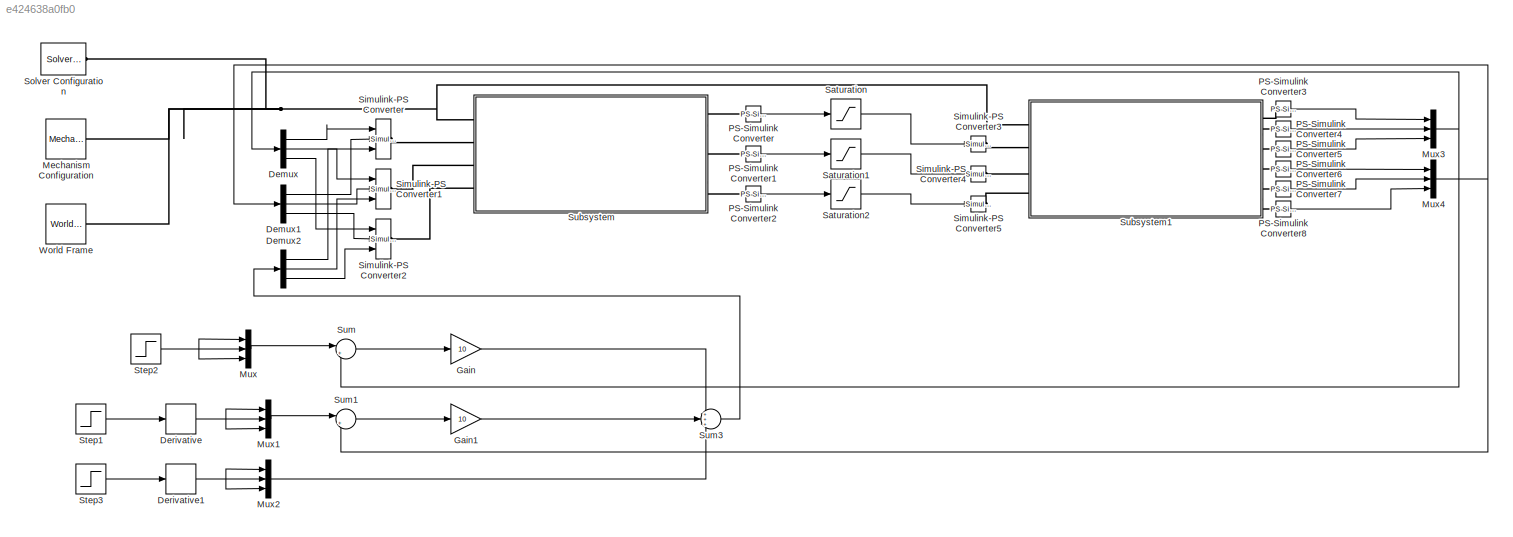
MODEL slx_e424638a0fb0
KIND model
CONFIG AbsTol = auto
CONFIG EnableMultiTasking = off
CONFIG FixedStep = 0.001
CONFIG MaxStep = auto
CONFIG MinStep = auto
CONFIG RelTol = 1e-3
CONFIG SampleTimeConstraint = Unconstrained
CONFIG SolverName = FixedStepAuto
CONFIG StartTime = 0.0
CONFIG StopTime = 10.0
BLOCK [Demux] Demux
  Outputs = 3
  Ports = [1, 3]
BLOCK [Demux] Demux1
  Outputs = 3
  Ports = [1, 3]
BLOCK [Demux] Demux2
  Outputs = 3
  Ports = [1, 3]
BLOCK [Derivative] Derivative
BLOCK [Derivative] Derivative1
BLOCK [Gain] Gain
  Gain = 10
BLOCK [Gain] Gain1
  Gain = 10
BLOCK [Reference] Mechanism Configuration  REF=sm_lib/Utilities/Mechanism
Configuration
  Ports = [0, 0, 0, 0, 0, 0, 1]
  SourceBlock = sm_lib/Utilities/Mechanism\nConfiguration
  SourceProductBaseCode = MS
  SourceType = Mechanism\nConfiguration
BLOCK [Mux] Mux
  DisplayOption = bar
  Inputs = 3
  Ports = [3, 1]
BLOCK [Mux] Mux1
  DisplayOption = bar
  Inputs = 3
  Ports = [3, 1]
BLOCK [Mux] Mux2
  DisplayOption = bar
  Inputs = 3
  Ports = [3, 1]
BLOCK [Mux] Mux3
  DisplayOption = bar
  Inputs = 3
  Ports = [3, 1]
BLOCK [Mux] Mux4
  DisplayOption = bar
  Inputs = 3
  Ports = [3, 1]
BLOCK [Reference] PS-Simulink Converter  REF=nesl_utility/PS-Simulink
Converter
  Ports = [0, 1, 0, 0, 0, 1]
  SourceBlock = nesl_utility/PS-Simulink\nConverter
  SourceProductBaseCode = PW,SS
  SourceType = PS-Simulink\nConverter
BLOCK [Reference] PS-Simulink Converter1  REF=nesl_utility/PS-Simulink
Converter
  Ports = [0, 1, 0, 0, 0, 1]
  SourceBlock = nesl_utility/PS-Simulink\nConverter
  SourceProductBaseCode = PW,SS
  SourceType = PS-Simulink\nConverter
BLOCK [Reference] PS-Simulink Converter2  REF=nesl_utility/PS-Simulink
Converter
  Ports = [0, 1, 0, 0, 0, 1]
  SourceBlock = nesl_utility/PS-Simulink\nConverter
  SourceProductBaseCode = PW,SS
  SourceType = PS-Simulink\nConverter
BLOCK [Reference] PS-Simulink Converter3  REF=nesl_utility/PS-Simulink
Converter
  Ports = [0, 1, 0, 0, 0, 1]
  SourceBlock = nesl_utility/PS-Simulink\nConverter
  SourceProductBaseCode = PW,SS
  SourceType = PS-Simulink\nConverter
BLOCK [Reference] PS-Simulink Converter4  REF=nesl_utility/PS-Simulink
Converter
  Ports = [0, 1, 0, 0, 0, 1]
  SourceBlock = nesl_utility/PS-Simulink\nConverter
  SourceProductBaseCode = PW,SS
  SourceType = PS-Simulink\nConverter
BLOCK [Reference] PS-Simulink Converter5  REF=nesl_utility/PS-Simulink
Converter
  Ports = [0, 1, 0, 0, 0, 1]
  SourceBlock = nesl_utility/PS-Simulink\nConverter
  SourceProductBaseCode = PW,SS
  SourceType = PS-Simulink\nConverter
BLOCK [Reference] PS-Simulink Converter6  REF=nesl_utility/PS-Simulink
Converter
  Ports = [0, 1, 0, 0, 0, 1]
  SourceBlock = nesl_utility/PS-Simulink\nConverter
  SourceProductBaseCode = PW,SS
  SourceType = PS-Simulink\nConverter
BLOCK [Reference] PS-Simulink Converter7  REF=nesl_utility/PS-Simulink
Converter
  Ports = [0, 1, 0, 0, 0, 1]
  SourceBlock = nesl_utility/PS-Simulink\nConverter
  SourceProductBaseCode = PW,SS
  SourceType = PS-Simulink\nConverter
BLOCK [Reference] PS-Simulink Converter8  REF=nesl_utility/PS-Simulink
Converter
  Ports = [0, 1, 0, 0, 0, 1]
  SourceBlock = nesl_utility/PS-Simulink\nConverter
  SourceProductBaseCode = PW,SS
  SourceType = PS-Simulink\nConverter
BLOCK [Saturate] Saturation
  LowerLimit = -10
  UpperLimit = 10
BLOCK [Saturate] Saturation1
  LowerLimit = -10
  UpperLimit = 10
BLOCK [Saturate] Saturation2
  LowerLimit = -10
  UpperLimit = 10
BLOCK [Reference] Simulink-PS Converter  REF=nesl_utility/Simulink-PS
Converter
  Ports = [3, 0, 0, 0, 0, 0, 1]
  SourceBlock = nesl_utility/Simulink-PS\nConverter
  SourceProductBaseCode = PW,SS
  SourceType = Simulink-PS\nConverter
BLOCK [Reference] Simulink-PS Converter1  REF=nesl_utility/Simulink-PS
Converter
  Ports = [3, 0, 0, 0, 0, 0, 1]
  SourceBlock = nesl_utility/Simulink-PS\nConverter
  SourceProductBaseCode = PW,SS
  SourceType = Simulink-PS\nConverter
BLOCK [Reference] Simulink-PS Converter2  REF=nesl_utility/Simulink-PS
Converter
  Ports = [3, 0, 0, 0, 0, 0, 1]
  SourceBlock = nesl_utility/Simulink-PS\nConverter
  SourceProductBaseCode = PW,SS
  SourceType = Simulink-PS\nConverter
BLOCK [Reference] Simulink-PS Converter3  REF=nesl_utility/Simulink-PS
Converter
  Ports = [1, 0, 0, 0, 0, 0, 1]
  SourceBlock = nesl_utility/Simulink-PS\nConverter
  SourceProductBaseCode = PW,SS
  SourceType = Simulink-PS\nConverter
BLOCK [Reference] Simulink-PS Converter4  REF=nesl_utility/Simulink-PS
Converter
  Ports = [1, 0, 0, 0, 0, 0, 1]
  SourceBlock = nesl_utility/Simulink-PS\nConverter
  SourceProductBaseCode = PW,SS
  SourceType = Simulink-PS\nConverter
BLOCK [Reference] Simulink-PS Converter5  REF=nesl_utility/Simulink-PS
Converter
  Ports = [1, 0, 0, 0, 0, 0, 1]
  SourceBlock = nesl_utility/Simulink-PS\nConverter
  SourceProductBaseCode = PW,SS
  SourceType = Simulink-PS\nConverter
BLOCK [Reference] Solver Configuration  REF=nesl_utility/Solver
Configuration
  Ports = [0, 0, 0, 0, 0, 0, 1]
  SourceBlock = nesl_utility/Solver\nConfiguration
  SourceProductBaseCode = PW,SS
  SourceType = Solver\nConfiguration
BLOCK [Step] Step1
  After = pi/3
  SampleTime = 0
BLOCK [Step] Step2
  After = pi/3
  SampleTime = 0
BLOCK [Step] Step3
  After = pi/3
  SampleTime = 0
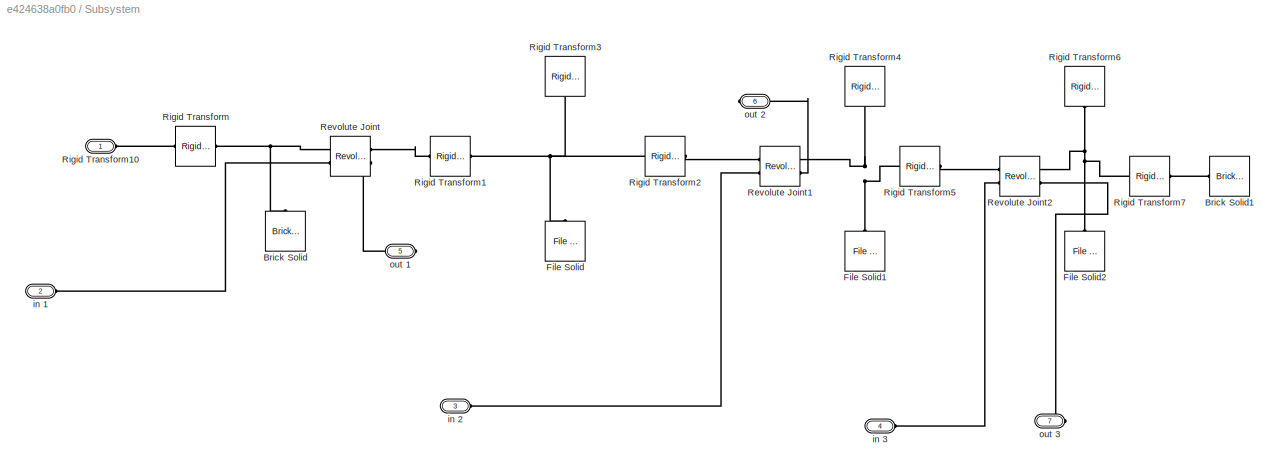
BLOCK [SubSystem] Subsystem
  Ports = [0, 0, 0, 0, 0, 4, 3]
  RequestExecContextInheritance = off
BLOCK [Reference] Subsystem/Brick Solid  REF=sm_lib/Body Elements/Brick Solid
  NameLocation = right
  Ports = [0, 0, 0, 0, 0, 0, 1]
  SourceBlock = sm_lib/Body Elements/Brick Solid
  SourceProductBaseCode = MS
  SourceType = Brick Solid
BLOCK [Reference] Subsystem/Brick Solid1  REF=sm_lib/Body Elements/Brick Solid
  NameLocation = top
  Ports = [0, 0, 0, 0, 0, 0, 1]
  SourceBlock = sm_lib/Body Elements/Brick Solid
  SourceProductBaseCode = MS
  SourceType = Brick Solid
BLOCK [Reference] Subsystem/File Solid  REF=sm_lib/Body Elements/File Solid
  NameLocation = right
  Ports = [0, 0, 0, 0, 0, 0, 1]
  SourceBlock = sm_lib/Body Elements/File Solid
  SourceProductBaseCode = MS
  SourceType = File Solid
BLOCK [Reference] Subsystem/File Solid1  REF=sm_lib/Body Elements/File Solid
  NameLocation = right
  Ports = [0, 0, 0, 0, 0, 0, 1]
  SourceBlock = sm_lib/Body Elements/File Solid
  SourceProductBaseCode = MS
  SourceType = File Solid
BLOCK [Reference] Subsystem/File Solid2  REF=sm_lib/Body Elements/File Solid
  NameLocation = right
  Ports = [0, 0, 0, 0, 0, 0, 1]
  SourceBlock = sm_lib/Body Elements/File Solid
  SourceProductBaseCode = MS
  SourceType = File Solid
BLOCK [Reference] Subsystem/Revolute Joint  REF=sm_lib/Joints/Revolute Joint
  Ports = [0, 0, 0, 0, 0, 2, 2]
  SourceBlock = sm_lib/Joints/Revolute Joint
  SourceProductBaseCode = MS
  SourceType = Revolute Joint
BLOCK [Reference] Subsystem/Revolute Joint1  REF=sm_lib/Joints/Revolute Joint
  Ports = [0, 0, 0, 0, 0, 2, 2]
  SourceBlock = sm_lib/Joints/Revolute Joint
  SourceProductBaseCode = MS
  SourceType = Revolute Joint
BLOCK [Reference] Subsystem/Revolute Joint2  REF=sm_lib/Joints/Revolute Joint
  Ports = [0, 0, 0, 0, 0, 2, 2]
  SourceBlock = sm_lib/Joints/Revolute Joint
  SourceProductBaseCode = MS
  SourceType = Revolute Joint
BLOCK [Reference] Subsystem/Rigid Transform  REF=sm_lib/Frames and
Transforms/Rigid
Transform
  Ports = [0, 0, 0, 0, 0, 1, 1]
  SourceBlock = sm_lib/Frames and\nTransforms/Rigid\nTransform
  SourceProductBaseCode = MS
  SourceType = Rigid\nTransform
BLOCK [Reference] Subsystem/Rigid Transform1  REF=sm_lib/Frames and
Transforms/Rigid
Transform
  Ports = [0, 0, 0, 0, 0, 1, 1]
  SourceBlock = sm_lib/Frames and\nTransforms/Rigid\nTransform
  SourceProductBaseCode = MS
  SourceType = Rigid\nTransform
BLOCK [PMIOPort] Subsystem/Rigid Transform10
  Side = Left
BLOCK [Reference] Subsystem/Rigid Transform2  REF=sm_lib/Frames and
Transforms/Rigid
Transform
  Ports = [0, 0, 0, 0, 0, 1, 1]
  SourceBlock = sm_lib/Frames and\nTransforms/Rigid\nTransform
  SourceProductBaseCode = MS
  SourceType = Rigid\nTransform
BLOCK [Reference] Subsystem/Rigid Transform3  REF=sm_lib/Frames and
Transforms/Rigid
Transform
  NameLocation = right
  Ports = [0, 0, 0, 0, 0, 1, 1]
  SourceBlock = sm_lib/Frames and\nTransforms/Rigid\nTransform
  SourceProductBaseCode = MS
  SourceType = Rigid\nTransform
BLOCK [Reference] Subsystem/Rigid Transform4  REF=sm_lib/Frames and
Transforms/Rigid
Transform
  NameLocation = right
  Ports = [0, 0, 0, 0, 0, 1, 1]
  SourceBlock = sm_lib/Frames and\nTransforms/Rigid\nTransform
  SourceProductBaseCode = MS
  SourceType = Rigid\nTransform
BLOCK [Reference] Subsystem/Rigid Transform5  REF=sm_lib/Frames and
Transforms/Rigid
Transform
  Ports = [0, 0, 0, 0, 0, 1, 1]
  SourceBlock = sm_lib/Frames and\nTransforms/Rigid\nTransform
  SourceProductBaseCode = MS
  SourceType = Rigid\nTransform
BLOCK [Reference] Subsystem/Rigid Transform6  REF=sm_lib/Frames and
Transforms/Rigid
Transform
  NameLocation = right
  Ports = [0, 0, 0, 0, 0, 1, 1]
  SourceBlock = sm_lib/Frames and\nTransforms/Rigid\nTransform
  SourceProductBaseCode = MS
  SourceType = Rigid\nTransform
BLOCK [Reference] Subsystem/Rigid Transform7  REF=sm_lib/Frames and
Transforms/Rigid
Transform
  Ports = [0, 0, 0, 0, 0, 1, 1]
  SourceBlock = sm_lib/Frames and\nTransforms/Rigid\nTransform
  SourceProductBaseCode = MS
  SourceType = Rigid\nTransform
BLOCK [PMIOPort] Subsystem/in 1
  Port = 2
  Side = Left
BLOCK [PMIOPort] Subsystem/in 2
  Port = 3
  Side = Left
BLOCK [PMIOPort] Subsystem/in 3
  Port = 4
  Side = Left
BLOCK [PMIOPort] Subsystem/out 1
  Port = 5
  Side = Right
BLOCK [PMIOPort] Subsystem/out 2
  Port = 6
  Side = Right
BLOCK [PMIOPort] Subsystem/out 3
  Port = 7
  Side = Right
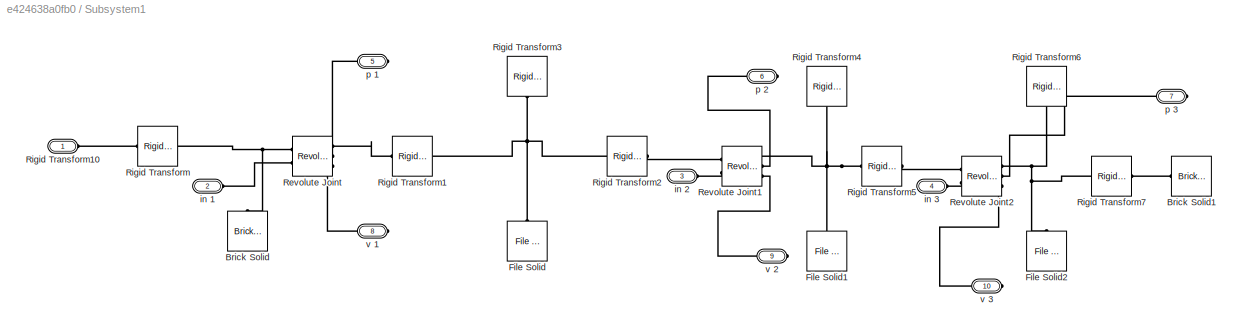
BLOCK [SubSystem] Subsystem1
  Ports = [0, 0, 0, 0, 0, 4, 6]
  RequestExecContextInheritance = off
BLOCK [Reference] Subsystem1/Brick Solid  REF=sm_lib/Body Elements/Brick Solid
  NameLocation = right
  Ports = [0, 0, 0, 0, 0, 0, 1]
  SourceBlock = sm_lib/Body Elements/Brick Solid
  SourceProductBaseCode = MS
  SourceType = Brick Solid
BLOCK [Reference] Subsystem1/Brick Solid1  REF=sm_lib/Body Elements/Brick Solid
  NameLocation = top
  Ports = [0, 0, 0, 0, 0, 0, 1]
  SourceBlock = sm_lib/Body Elements/Brick Solid
  SourceProductBaseCode = MS
  SourceType = Brick Solid
BLOCK [Reference] Subsystem1/File Solid  REF=sm_lib/Body Elements/File Solid
  NameLocation = right
  Ports = [0, 0, 0, 0, 0, 0, 1]
  SourceBlock = sm_lib/Body Elements/File Solid
  SourceProductBaseCode = MS
  SourceType = File Solid
BLOCK [Reference] Subsystem1/File Solid1  REF=sm_lib/Body Elements/File Solid
  NameLocation = right
  Ports = [0, 0, 0, 0, 0, 0, 1]
  SourceBlock = sm_lib/Body Elements/File Solid
  SourceProductBaseCode = MS
  SourceType = File Solid
BLOCK [Reference] Subsystem1/File Solid2  REF=sm_lib/Body Elements/File Solid
  NameLocation = right
  Ports = [0, 0, 0, 0, 0, 0, 1]
  SourceBlock = sm_lib/Body Elements/File Solid
  SourceProductBaseCode = MS
  SourceType = File Solid
BLOCK [Reference] Subsystem1/Revolute Joint  REF=sm_lib/Joints/Revolute Joint
  Ports = [0, 0, 0, 0, 0, 2, 3]
  SourceBlock = sm_lib/Joints/Revolute Joint
  SourceProductBaseCode = MS
  SourceType = Revolute Joint
BLOCK [Reference] Subsystem1/Revolute Joint1  REF=sm_lib/Joints/Revolute Joint
  Ports = [0, 0, 0, 0, 0, 2, 3]
  SourceBlock = sm_lib/Joints/Revolute Joint
  SourceProductBaseCode = MS
  SourceType = Revolute Joint
BLOCK [Reference] Subsystem1/Revolute Joint2  REF=sm_lib/Joints/Revolute Joint
  Ports = [0, 0, 0, 0, 0, 2, 3]
  SourceBlock = sm_lib/Joints/Revolute Joint
  SourceProductBaseCode = MS
  SourceType = Revolute Joint
BLOCK [Reference] Subsystem1/Rigid Transform  REF=sm_lib/Frames and
Transforms/Rigid
Transform
  Ports = [0, 0, 0, 0, 0, 1, 1]
  SourceBlock = sm_lib/Frames and\nTransforms/Rigid\nTransform
  SourceProductBaseCode = MS
  SourceType = Rigid\nTransform
BLOCK [Reference] Subsystem1/Rigid Transform1  REF=sm_lib/Frames and
Transforms/Rigid
Transform
  Ports = [0, 0, 0, 0, 0, 1, 1]
  SourceBlock = sm_lib/Frames and\nTransforms/Rigid\nTransform
  SourceProductBaseCode = MS
  SourceType = Rigid\nTransform
BLOCK [PMIOPort] Subsystem1/Rigid Transform10
  Side = Left
BLOCK [Reference] Subsystem1/Rigid Transform2  REF=sm_lib/Frames and
Transforms/Rigid
Transform
  Ports = [0, 0, 0, 0, 0, 1, 1]
  SourceBlock = sm_lib/Frames and\nTransforms/Rigid\nTransform
  SourceProductBaseCode = MS
  SourceType = Rigid\nTransform
BLOCK [Reference] Subsystem1/Rigid Transform3  REF=sm_lib/Frames and
Transforms/Rigid
Transform
  NameLocation = right
  Ports = [0, 0, 0, 0, 0, 1, 1]
  SourceBlock = sm_lib/Frames and\nTransforms/Rigid\nTransform
  SourceProductBaseCode = MS
  SourceType = Rigid\nTransform
BLOCK [Reference] Subsystem1/Rigid Transform4  REF=sm_lib/Frames and
Transforms/Rigid
Transform
  NameLocation = right
  Ports = [0, 0, 0, 0, 0, 1, 1]
  SourceBlock = sm_lib/Frames and\nTransforms/Rigid\nTransform
  SourceProductBaseCode = MS
  SourceType = Rigid\nTransform
BLOCK [Reference] Subsystem1/Rigid Transform5  REF=sm_lib/Frames and
Transforms/Rigid
Transform
  Ports = [0, 0, 0, 0, 0, 1, 1]
  SourceBlock = sm_lib/Frames and\nTransforms/Rigid\nTransform
  SourceProductBaseCode = MS
  SourceType = Rigid\nTransform
BLOCK [Reference] Subsystem1/Rigid Transform6  REF=sm_lib/Frames and
Transforms/Rigid
Transform
  NameLocation = right
  Ports = [0, 0, 0, 0, 0, 1, 1]
  SourceBlock = sm_lib/Frames and\nTransforms/Rigid\nTransform
  SourceProductBaseCode = MS
  SourceType = Rigid\nTransform
BLOCK [Reference] Subsystem1/Rigid Transform7  REF=sm_lib/Frames and
Transforms/Rigid
Transform
  Ports = [0, 0, 0, 0, 0, 1, 1]
  SourceBlock = sm_lib/Frames and\nTransforms/Rigid\nTransform
  SourceProductBaseCode = MS
  SourceType = Rigid\nTransform
BLOCK [PMIOPort] Subsystem1/in 1
  Port = 2
  Side = Left
BLOCK [PMIOPort] Subsystem1/in 2
  Port = 3
  Side = Left
BLOCK [PMIOPort] Subsystem1/in 3
  Port = 4
  Side = Left
BLOCK [PMIOPort] Subsystem1/p 1
  NameLocation = top
  Port = 5
  Side = Right
BLOCK [PMIOPort] Subsystem1/p 2
  NameLocation = top
  Port = 6
  Side = Right
BLOCK [PMIOPort] Subsystem1/p 3
  NameLocation = top
  Port = 7
  Side = Right
BLOCK [PMIOPort] Subsystem1/v 1
  NameLocation = top
  Port = 8
  Side = Right
BLOCK [PMIOPort] Subsystem1/v 2
  NameLocation = top
  Port = 9
  Side = Right
BLOCK [PMIOPort] Subsystem1/v 3
  NameLocation = top
  Port = 10
  Side = Right
BLOCK [Sum] Sum
  Inputs = |+-
  Ports = [2, 1]
BLOCK [Sum] Sum1
  Inputs = |+-
  Ports = [2, 1]
BLOCK [Sum] Sum3
  Inputs = +++
  Ports = [3, 1]
BLOCK [Reference] World Frame  REF=sm_lib/Frames and
Transforms/World Frame
  Ports = [0, 0, 0, 0, 0, 0, 1]
  SourceBlock = sm_lib/Frames and\nTransforms/World Frame
  SourceProductBaseCode = MS
  SourceType = World Frame
LINE Demux1:1 -> Simulink-PS Converter:2
LINE Demux1:2 -> Simulink-PS Converter1:2
LINE Demux1:3 -> Simulink-PS Converter2:2
LINE Demux2:1 -> Simulink-PS Converter:3
LINE Demux2:2 -> Simulink-PS Converter1:3
LINE Demux2:3 -> Simulink-PS Converter2:3
LINE Demux:1 -> Simulink-PS Converter:1
LINE Demux:2 -> Simulink-PS Converter1:1
LINE Demux:3 -> Simulink-PS Converter2:1
NET Derivative1:1 -> Mux2:1, Mux2:2, Mux2:3
NET Derivative:1 -> Mux1:1, Mux1:2, Mux1:3
LINE Gain1:1 -> Sum3:2
LINE Gain:1 -> Sum3:1
LINE Mux1:1 -> Sum1:1
LINE Mux2:1 -> Sum3:3
NET Mux3:1 -> Demux:1, Sum:2
NET Mux4:1 -> Demux1:1, Sum1:2
LINE Mux:1 -> Sum:1
LINE PS-Simulink Converter1:1 -> Saturation1:1
LINE PS-Simulink Converter2:1 -> Saturation2:1
LINE PS-Simulink Converter3:1 -> Mux3:1
LINE PS-Simulink Converter4:1 -> Mux3:2
LINE PS-Simulink Converter5:1 -> Mux3:3
LINE PS-Simulink Converter6:1 -> Mux4:1
LINE PS-Simulink Converter7:1 -> Mux4:2
LINE PS-Simulink Converter8:1 -> Mux4:3
LINE PS-Simulink Converter:1 -> Saturation:1
LINE Saturation1:1 -> Simulink-PS Converter4:1
LINE Saturation2:1 -> Simulink-PS Converter5:1
LINE Saturation:1 -> Simulink-PS Converter3:1
LINE Step1:1 -> Derivative:1
NET Step2:1 -> Mux:1, Mux:2, Mux:3
LINE Step3:1 -> Derivative1:1
LINE Sum1:1 -> Gain1:1
LINE Sum3:1 -> Demux2:1
LINE Sum:1 -> Gain:1
PNET net1: Mechanism Configuration:RConn1 -- Solver Configuration:RConn1 -- Subsystem1:LConn1 -- Subsystem:LConn1 -- World Frame:RConn1
PLINE PS-Simulink Converter1:LConn1 -- Subsystem:RConn2
PLINE PS-Simulink Converter2:LConn1 -- Subsystem:RConn3
PLINE PS-Simulink Converter3:LConn1 -- Subsystem1:RConn1
PLINE PS-Simulink Converter4:LConn1 -- Subsystem1:RConn2
PLINE PS-Simulink Converter5:LConn1 -- Subsystem1:RConn3
PLINE PS-Simulink Converter6:LConn1 -- Subsystem1:RConn4
PLINE PS-Simulink Converter7:LConn1 -- Subsystem1:RConn5
PLINE PS-Simulink Converter8:LConn1 -- Subsystem1:RConn6
PLINE PS-Simulink Converter:LConn1 -- Subsystem:RConn1
PLINE Simulink-PS Converter1:RConn1 -- Subsystem:LConn3
PLINE Simulink-PS Converter2:RConn1 -- Subsystem:LConn4
PLINE Simulink-PS Converter3:RConn1 -- Subsystem1:LConn2
PLINE Simulink-PS Converter4:RConn1 -- Subsystem1:LConn3
PLINE Simulink-PS Converter5:RConn1 -- Subsystem1:LConn4
PLINE Simulink-PS Converter:RConn1 -- Subsystem:LConn2
PLINE Subsystem/Brick Solid1:RConn1 -- Subsystem/Rigid Transform7:RConn1
PNET net2: Subsystem/Brick Solid:RConn1 -- Subsystem/Revolute Joint:LConn1 -- Subsystem/Rigid Transform:RConn1
PNET net3: Subsystem/File Solid1:RConn1 -- Subsystem/Revolute Joint1:RConn1 -- Subsystem/Rigid Transform4:LConn1 -- Subsystem/Rigid Transform5:LConn1
PNET net4: Subsystem/File Solid2:RConn1 -- Subsystem/Revolute Joint2:RConn1 -- Subsystem/Rigid Transform6:LConn1 -- Subsystem/Rigid Transform7:LConn1
PNET net5: Subsystem/File Solid:RConn1 -- Subsystem/Rigid Transform1:RConn1 -- Subsystem/Rigid Transform2:LConn1 -- Subsystem/Rigid Transform3:LConn1
PLINE Subsystem/Revolute Joint1:LConn1 -- Subsystem/Rigid Transform2:RConn1
PLINE Subsystem/Revolute Joint1:LConn2 -- Subsystem/in 2:RConn1
PLINE Subsystem/Revolute Joint1:RConn2 -- Subsystem/out 2:RConn1
PLINE Subsystem/Revolute Joint2:LConn1 -- Subsystem/Rigid Transform5:RConn1
PLINE Subsystem/Revolute Joint2:LConn2 -- Subsystem/in 3:RConn1
PLINE Subsystem/Revolute Joint2:RConn2 -- Subsystem/out 3:RConn1
PLINE Subsystem/Revolute Joint:LConn2 -- Subsystem/in 1:RConn1
PLINE Subsystem/Revolute Joint:RConn1 -- Subsystem/Rigid Transform1:LConn1
PLINE Subsystem/Revolute Joint:RConn2 -- Subsystem/out 1:RConn1
PLINE Subsystem/Rigid Transform10:RConn1 -- Subsystem/Rigid Transform:LConn1
PLINE Subsystem1/Brick Solid1:RConn1 -- Subsystem1/Rigid Transform7:RConn1
PNET net6: Subsystem1/Brick Solid:RConn1 -- Subsystem1/Revolute Joint:LConn1 -- Subsystem1/Rigid Transform:RConn1
PNET net7: Subsystem1/File Solid1:RConn1 -- Subsystem1/Revolute Joint1:RConn1 -- Subsystem1/Rigid Transform4:LConn1 -- Subsystem1/Rigid Transform5:LConn1
PNET net8: Subsystem1/File Solid2:RConn1 -- Subsystem1/Revolute Joint2:RConn1 -- Subsystem1/Rigid Transform6:LConn1 -- Subsystem1/Rigid Transform7:LConn1
PNET net9: Subsystem1/File Solid:RConn1 -- Subsystem1/Rigid Transform1:RConn1 -- Subsystem1/Rigid Transform2:LConn1 -- Subsystem1/Rigid Transform3:LConn1
PLINE Subsystem1/Revolute Joint1:LConn1 -- Subsystem1/Rigid Transform2:RConn1
PLINE Subsystem1/Revolute Joint1:LConn2 -- Subsystem1/in 2:RConn1
PLINE Subsystem1/Revolute Joint1:RConn2 -- Subsystem1/p 2:RConn1
PLINE Subsystem1/Revolute Joint1:RConn3 -- Subsystem1/v 2:RConn1
PLINE Subsystem1/Revolute Joint2:LConn1 -- Subsystem1/Rigid Transform5:RConn1
PLINE Subsystem1/Revolute Joint2:LConn2 -- Subsystem1/in 3:RConn1
PLINE Subsystem1/Revolute Joint2:RConn2 -- Subsystem1/p 3:RConn1
PLINE Subsystem1/Revolute Joint2:RConn3 -- Subsystem1/v 3:RConn1
PLINE Subsystem1/Revolute Joint:LConn2 -- Subsystem1/in 1:RConn1
PLINE Subsystem1/Revolute Joint:RConn1 -- Subsystem1/Rigid Transform1:LConn1
PLINE Subsystem1/Revolute Joint:RConn2 -- Subsystem1/p 1:RConn1
PLINE Subsystem1/Revolute Joint:RConn3 -- Subsystem1/v 1:RConn1
PLINE Subsystem1/Rigid Transform10:RConn1 -- Subsystem1/Rigid Transform:LConn1
note: NET lines group one-source signal fan-out (src -> all destinations, sorted); 1:1 wires keep LINE; PNET lines group multi-terminal physical nets as a canonical sorted terminal list (undirected conserving connections); 2-terminal nets keep the pairwise PLINE form
